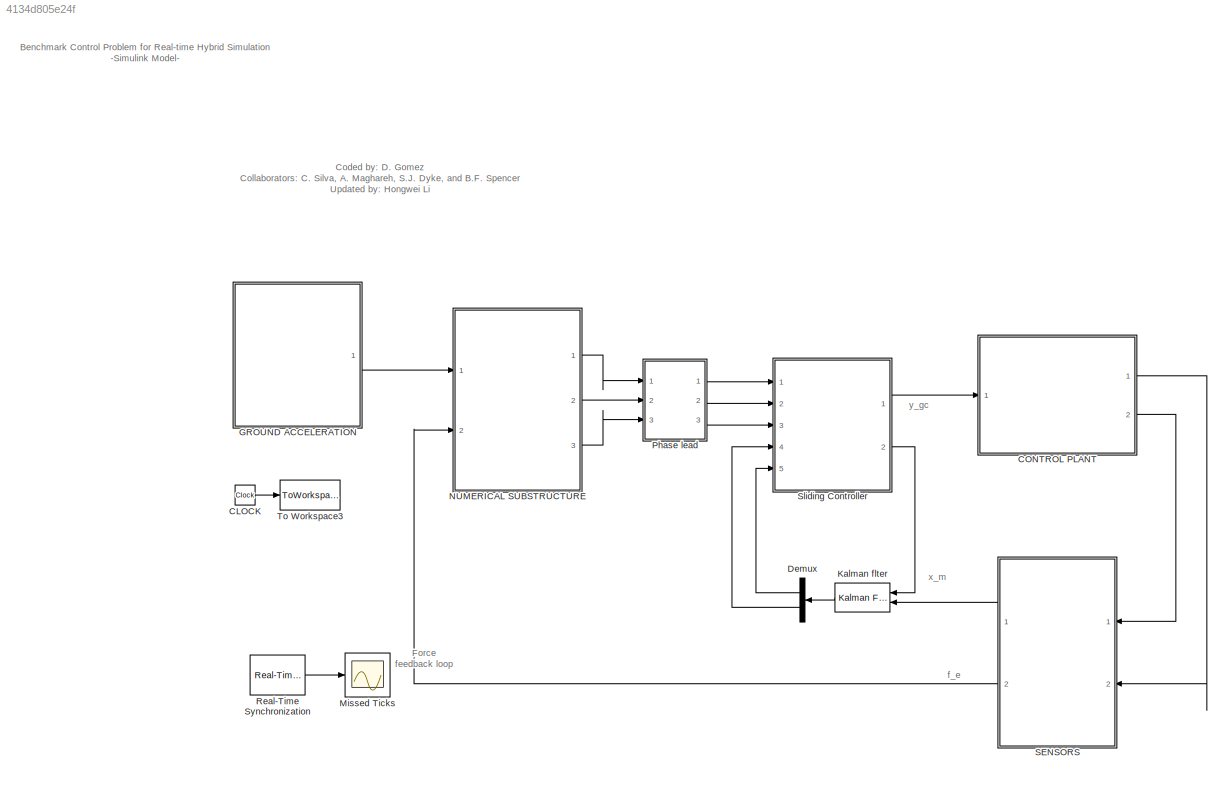
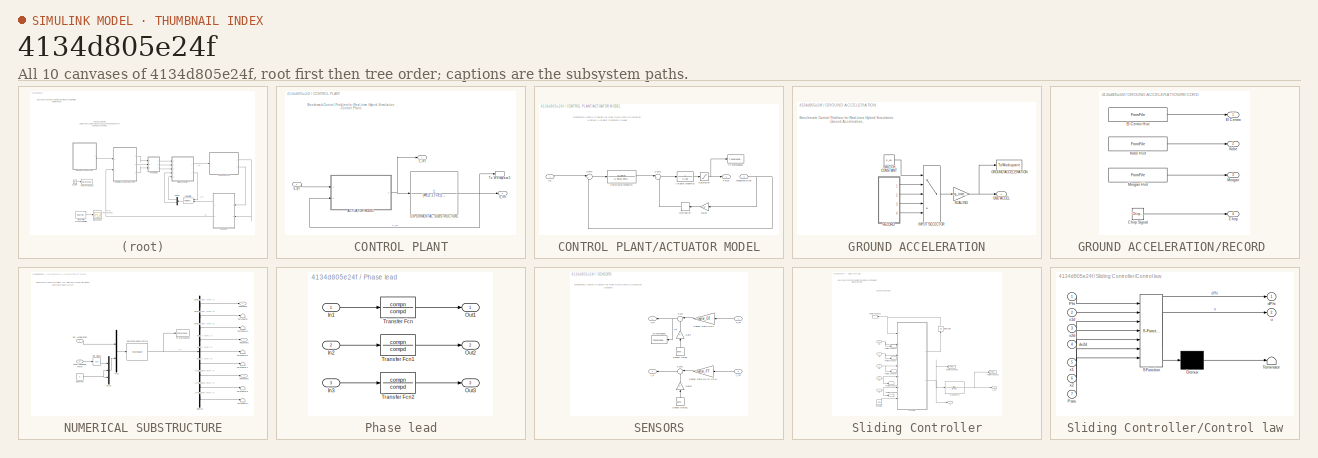
[diagram: thumbnail index - all 10 canvases of the model, root first then tree order]
MODEL slx_4134d805e24f
KIND model
CONFIG AbsTol = auto
CONFIG EnableMultiTasking = on
CONFIG FixedStep = dt_rths
CONFIG MaxStep = auto
CONFIG MinStep = auto
CONFIG RelTol = 1e-3
CONFIG SampleTimeConstraint = Unconstrained
CONFIG Solver = ode4
CONFIG SolverName = ode4
CONFIG StartTime = 0.0
CONFIG StopTime = tend
BLOCK [Clock] CLOCK
  Decimation = 1
BLOCK [SubSystem] CONTROL PLANT
  Ports = [1, 2]
  RequestExecContextInheritance = off
BLOCK [SubSystem] CONTROL PLANT/ACTUATOR MODEL
  Ports = [2, 1]
  RequestExecContextInheritance = off
BLOCK [TransferFcn] CONTROL PLANT/ACTUATOR MODEL/Actuator dynamics
  Denominator = [1 a3]
  Numerator = 1
BLOCK [Derivative] CONTROL PLANT/ACTUATOR MODEL/Derivative
BLOCK [Outport] CONTROL PLANT/ACTUATOR MODEL/Force
  IconDisplay = Port number
BLOCK [Gain] CONTROL PLANT/ACTUATOR MODEL/Gain1
  Gain = a2
  Multiplication = Matrix(K*u)
  OutDataTypeStr = Inherit: Inherit via internal rule
  ParamDataTypeStr = Inherit: Inherit via internal rule
  SaturateOnIntegerOverflow = off
BLOCK [Inport] CONTROL PLANT/ACTUATOR MODEL/In1
  IconDisplay = Port number
BLOCK [Inport] CONTROL PLANT/ACTUATOR MODEL/Measured Disp
  IconDisplay = Port number
  Port = 2
BLOCK [Saturate] CONTROL PLANT/ACTUATOR MODEL/Saturation
  InputPortMap = u0
  LowerLimit = -8900
  Ports = [1, 1]
  UpperLimit = 8900
BLOCK [TransferFcn] CONTROL PLANT/ACTUATOR MODEL/Servo-valve dynamics
  Denominator = [1 beta1 beta2]
  Numerator = a1_beta0
BLOCK [Sum] CONTROL PLANT/ACTUATOR MODEL/Sum2
  IconShape = round
  InputSameDT = off
  Inputs = |+-
  OutDataTypeStr = Inherit: Inherit via internal rule
  Ports = [2, 1]
  SaturateOnIntegerOverflow = off
BLOCK [Sum] CONTROL PLANT/ACTUATOR MODEL/Sum3
  IconShape = round
  InputSameDT = off
  Inputs = |+-
  OutDataTypeStr = Inherit: Inherit via internal rule
  Ports = [2, 1]
  SaturateOnIntegerOverflow = off
BLOCK [ToWorkspace] CONTROL PLANT/ACTUATOR MODEL/To Workspace1
  FixptAsFi = on
  MaxDataPoints = inf
  Ports = [1]
  SampleTime = -1
  VariableName = Force_act
BLOCK [TransferFcn] CONTROL PLANT/EXPERIMENTAL SUBSTRUCTURE
  Denominator = [ME(1,1) CE(1,1) KE(1,1)]
  Numerator = 1
BLOCK [ToWorkspace] CONTROL PLANT/To Workspace5
  FixptAsFi = on
  MaxDataPoints = inf
  Ports = [1]
  SampleTime = -1
  VariableName = x_int
BLOCK [Outport] CONTROL PLANT/f_int
  IconDisplay = Port number
BLOCK [Outport] CONTROL PLANT/x_int
  IconDisplay = Port number
  Port = 2
BLOCK [Inport] CONTROL PLANT/y_gc
  IconDisplay = Port number
BLOCK [Demux] Demux
  DisplayOption = bar
  Outputs = 2
  Ports = [1, 2]
BLOCK [SubSystem] GROUND ACCELERATION
  Ports = [0, 1]
  RequestExecContextInheritance = off
BLOCK [Outport] GROUND ACCELERATION/GND ACCEL
  IconDisplay = Port number
BLOCK [ToWorkspace] GROUND ACCELERATION/GROUND ACCELERATION
  MaxDataPoints = inf
  Ports = [1]
  SampleTime = -1
  VariableName = EQ_input
BLOCK [MultiPortSwitch] GROUND ACCELERATION/INPUT SELECTOR
  InputSameDT = off
  Inputs = 4
  Ports = [5, 1]
  SaturateOnIntegerOverflow = off
BLOCK [SubSystem] GROUND ACCELERATION/RECORD 
  Ports = [0, 4]
  RequestExecContextInheritance = off
BLOCK [Outport] GROUND ACCELERATION/RECORD /Chirp
  IconDisplay = Port number
  Port = 4
BLOCK [Reference] GROUND ACCELERATION/RECORD /Chirp Signal  REF=simulink/Sources/Chirp Signal
  Ports = [0, 1]
  SourceBlock = simulink/Sources/Chirp Signal
  SourceProductBaseCode = SL
  SourceProductName = Simulink
  SourceType = chirp
BLOCK [Outport] GROUND ACCELERATION/RECORD /El Centro
  IconDisplay = Port number
BLOCK [FromFile] GROUND ACCELERATION/RECORD /El Centro Hist
  FileName = ElCentroAccelNoScaling.mat
BLOCK [Outport] GROUND ACCELERATION/RECORD /Kobe
  IconDisplay = Port number
  Port = 2
BLOCK [FromFile] GROUND ACCELERATION/RECORD /Kobe Hist
  FileName = KobeAccelNoScaling.mat
BLOCK [Outport] GROUND ACCELERATION/RECORD /Morgan
  IconDisplay = Port number
  Port = 3
BLOCK [FromFile] GROUND ACCELERATION/RECORD /Morgan Hist
  FileName = MorganAccelNoScaling.mat
BLOCK [Gain] GROUND ACCELERATION/SCALING
  Gain = eq_intensity
  Multiplication = Matrix(K*u)
  OutDataTypeStr = Inherit: Inherit via internal rule
  ParamDataTypeStr = Inherit: Inherit via internal rule
  SaturateOnIntegerOverflow = off
BLOCK [Constant] GROUND ACCELERATION/SWITCH CONSTANT
  Value = E_sw
BLOCK [Reference] Kalman flter  REF=ctrlSharedLib/Kalman Filter
  Ports = [2, 1]
  SourceBlock = ctrlSharedLib/Kalman Filter
  SourceProductBaseCode = CT
  SourceProductName = Control System Toolbox
  SourceType = ctrlKalmanFilter
BLOCK [Scope] Missed Ticks
  Commented = on
  Floating = off
  NumInputPorts = 1
  Ports = [1]
  ScopeSpecificationString = Simulink.scopes.TimeScopeBlockCfg('CurrentConfiguration', extmgr.ConfigurationSet(extmgr.Configuration('Core','General UI',true,'FigureColor',[0.156862745098039 0.156862745098039 0.156862745098039]),extmgr.Configuration('Core','Source UI',true),extmgr.Configuration('Sources','WiredSimulink',true,'DataLoggingVariableName','ScopeData1','DataLoggingSaveFormat','Structure','DataLoggingDecimation','1',...<+2769ch>
BLOCK [SubSystem] NUMERICAL SUBSTRUCTURE
  Ports = [2, 3]
  RequestExecContextInheritance = off
BLOCK [Constant] NUMERICAL SUBSTRUCTURE/Constant
  Value = 0
BLOCK [Demux] NUMERICAL SUBSTRUCTURE/Demux
  DisplayOption = bar
  Outputs = 9
  Ports = [1, 9]
BLOCK [Inport] NUMERICAL SUBSTRUCTURE/EQ Acceleration
  IconDisplay = Port number
BLOCK [Mux] NUMERICAL SUBSTRUCTURE/Mux
  DisplayOption = bar
  Inputs = 2
  Ports = [2, 1]
BLOCK [Mux] NUMERICAL SUBSTRUCTURE/Mux1
  DisplayOption = bar
  Inputs = 3
  Ports = [3, 1]
BLOCK [StateSpace] NUMERICAL SUBSTRUCTURE/Numerical Substructure
  A = A_ns
  B = B_ns
  C = C_ns
  D = D_ns
  InitialCondition = 0
  Ports = [1, 1]
BLOCK [Inport] NUMERICAL SUBSTRUCTURE/RTHS feedback Force
  IconDisplay = Port number
  Port = 2
BLOCK [Outport] NUMERICAL SUBSTRUCTURE/Response
  IconDisplay = Port number
BLOCK [Outport] NUMERICAL SUBSTRUCTURE/Response1
  IconDisplay = Port number
  Port = 2
BLOCK [Outport] NUMERICAL SUBSTRUCTURE/Response2
  IconDisplay = Port number
  Port = 3
BLOCK [Terminator] NUMERICAL SUBSTRUCTURE/Terminator
BLOCK [Terminator] NUMERICAL SUBSTRUCTURE/Terminator1
BLOCK [Terminator] NUMERICAL SUBSTRUCTURE/Terminator3
BLOCK [Terminator] NUMERICAL SUBSTRUCTURE/Terminator4
BLOCK [Terminator] NUMERICAL SUBSTRUCTURE/Terminator6
BLOCK [Terminator] NUMERICAL SUBSTRUCTURE/Terminator7
BLOCK [ToWorkspace] NUMERICAL SUBSTRUCTURE/To Workspace1
  FixptAsFi = on
  MaxDataPoints = inf
  Ports = [1]
  SampleTime = -1
  SaveFormat = Timeseries
  VariableName = Num_resp
BLOCK [UnitDelay] NUMERICAL SUBSTRUCTURE/Unit Delay1
  HasFrameUpgradeWarning = on
  SampleTime = -1
BLOCK [SubSystem] Phase lead
  Ports = [3, 3]
  RequestExecContextInheritance = off
BLOCK [Inport] Phase lead/In1
  IconDisplay = Port number
BLOCK [Inport] Phase lead/In2
  IconDisplay = Port number
  Port = 2
BLOCK [Inport] Phase lead/In3
  IconDisplay = Port number
  Port = 3
BLOCK [Outport] Phase lead/Out1
  IconDisplay = Port number
BLOCK [Outport] Phase lead/Out2
  IconDisplay = Port number
  Port = 2
BLOCK [Outport] Phase lead/Out3
  IconDisplay = Port number
  Port = 3
BLOCK [TransferFcn] Phase lead/Transfer Fcn
  Denominator = compd
  Numerator = compn
BLOCK [TransferFcn] Phase lead/Transfer Fcn1
  Denominator = compd
  Numerator = compn
BLOCK [TransferFcn] Phase lead/Transfer Fcn2
  Denominator = compd
  Numerator = compn
BLOCK [Reference] Real-Time Synchronization  REF=sldrtlib/Real-Time
Synchronization
  Commented = on
  Ports = [0, 1]
  SourceBlock = sldrtlib/Real-Time\nSynchronization
  SourceProductBaseCode = WT
  SourceProductName = Simulink Desktop Real-Time
  SourceType = Simulink Desktop Real-Time Synchronization
BLOCK [SubSystem] SENSORS
  Ports = [2, 2]
  RequestExecContextInheritance = off
BLOCK [Gain] SENSORS/Gain
  OutDataTypeStr = Inherit: Inherit via internal rule
  ParamDataTypeStr = Inherit: Inherit via internal rule
  SaturateOnIntegerOverflow = off
BLOCK [Gain] SENSORS/Gain1
  OutDataTypeStr = Inherit: Inherit via internal rule
  ParamDataTypeStr = Inherit: Inherit via internal rule
  SaturateOnIntegerOverflow = off
BLOCK [Gain] SENSORS/Sensor Gain LOAD CELL
  Gain = Gsnsr_FT
BLOCK [Gain] SENSORS/Sensor Gain LVDT
  Gain = Gsnsr_DT
BLOCK [Reference] SENSORS/Sensor Noise  REF=simulink/Sources/Band-Limited
White Noise
  Ports = [0, 1]
  SourceBlock = simulink/Sources/Band-Limited\nWhite Noise
  SourceProductBaseCode = SL
  SourceProductName = Simulink
  SourceType = Band-Limited White Noise.
BLOCK [Reference] SENSORS/Sensor Noise1  REF=simulink/Sources/Band-Limited
White Noise
  Ports = [0, 1]
  SourceBlock = simulink/Sources/Band-Limited\nWhite Noise
  SourceProductBaseCode = SL
  SourceProductName = Simulink
  SourceType = Band-Limited White Noise.
BLOCK [Sum] SENSORS/Sum
  IconShape = round
  Inputs = |++
  Ports = [2, 1]
BLOCK [Sum] SENSORS/Sum1
  IconShape = round
  Inputs = |++
  Ports = [2, 1]
BLOCK [ToWorkspace] SENSORS/To Workspace
  FixptAsFi = on
  MaxDataPoints = inf
  Ports = [1]
  SampleTime = -1
  SaveFormat = Timeseries
  VariableName = X_m
BLOCK [Outport] SENSORS/f_e 
  IconDisplay = Port number
  Port = 2
BLOCK [Inport] SENSORS/f_int
  IconDisplay = Port number
  Port = 2
BLOCK [Inport] SENSORS/x_int
  IconDisplay = Port number
BLOCK [Outport] SENSORS/x_m
  IconDisplay = Port number
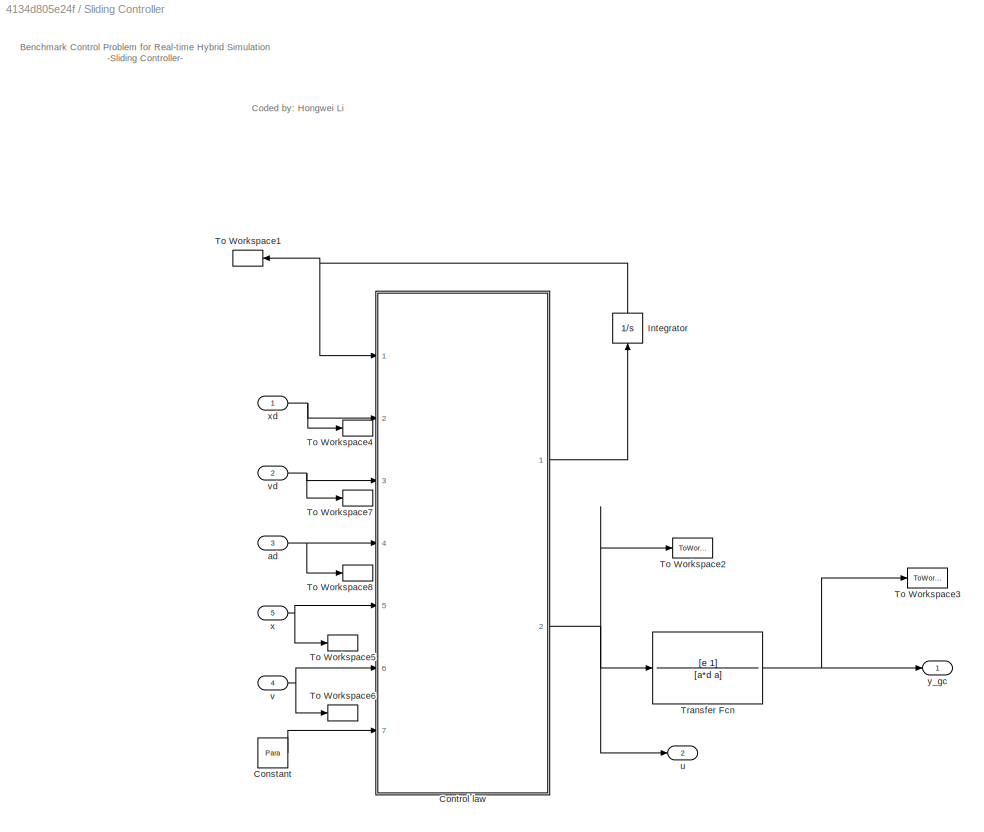
BLOCK [SubSystem] Sliding Controller
  Ports = [5, 2]
  RequestExecContextInheritance = off
BLOCK [Constant] Sliding Controller/Constant
  Value = Para
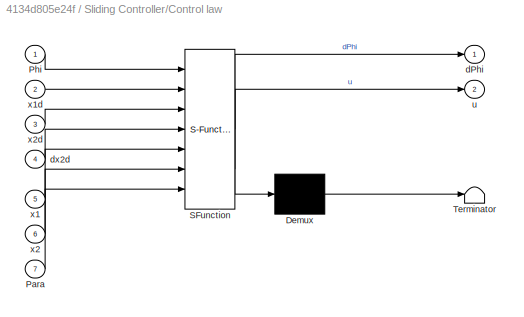
BLOCK [SubSystem] Sliding Controller/Control law
  ErrorFcn = Stateflow.Translate.translate
  PermitHierarchicalResolution = ExplicitOnly
  Ports = [7, 2]
  RequestExecContextInheritance = off
  SFBlockType = MATLAB Function
  TreatAsAtomicUnit = on
BLOCK [Demux] Sliding Controller/Control law/ Demux 
  Outputs = 1
  Ports = [1, 1]
BLOCK [S-Function] Sliding Controller/Control law/ SFunction 
  EnableBusSupport = on
  FunctionName = sf_sfun
  PortCounts = [7 3]
  Ports = [7, 3]
  SFcnIsStateOwnerBlock = off
  SFunctionDeploymentMode = off
  Tag = Stateflow S-Function vRTHS_MDOF_SimRT 4
BLOCK [Terminator] Sliding Controller/Control law/ Terminator 
BLOCK [Inport] Sliding Controller/Control law/Para
  IconDisplay = Port number
  Port = 7
BLOCK [Inport] Sliding Controller/Control law/Phi
  IconDisplay = Port number
BLOCK [Outport] Sliding Controller/Control law/dPhi
  IconDisplay = Port number
BLOCK [Inport] Sliding Controller/Control law/dx2d
  IconDisplay = Port number
  Port = 4
BLOCK [Outport] Sliding Controller/Control law/u
  IconDisplay = Port number
  Port = 2
BLOCK [Inport] Sliding Controller/Control law/x1
  IconDisplay = Port number
  Port = 5
BLOCK [Inport] Sliding Controller/Control law/x1d
  IconDisplay = Port number
  Port = 2
BLOCK [Inport] Sliding Controller/Control law/x2
  IconDisplay = Port number
  Port = 6
BLOCK [Inport] Sliding Controller/Control law/x2d
  IconDisplay = Port number
  Port = 3
BLOCK [Integrator] Sliding Controller/Integrator
  Ports = [1, 1]
BLOCK [ToWorkspace] Sliding Controller/To Workspace1
  FixptAsFi = on
  MaxDataPoints = inf
  Ports = [1]
  SampleTime = -1
  VariableName = Phi
BLOCK [ToWorkspace] Sliding Controller/To Workspace2
  FixptAsFi = on
  MaxDataPoints = inf
  Ports = [1]
  SampleTime = -1
  VariableName = u
BLOCK [ToWorkspace] Sliding Controller/To Workspace3
  FixptAsFi = on
  MaxDataPoints = inf
  Ports = [1]
  SampleTime = -1
  VariableName = y_gc
BLOCK [ToWorkspace] Sliding Controller/To Workspace4
  FixptAsFi = on
  MaxDataPoints = inf
  Ports = [1]
  SampleTime = -1
  VariableName = xd
BLOCK [ToWorkspace] Sliding Controller/To Workspace5
  FixptAsFi = on
  MaxDataPoints = inf
  Ports = [1]
  SampleTime = -1
  VariableName = x
BLOCK [ToWorkspace] Sliding Controller/To Workspace6
  FixptAsFi = on
  MaxDataPoints = inf
  Ports = [1]
  SampleTime = -1
  VariableName = v
BLOCK [ToWorkspace] Sliding Controller/To Workspace7
  FixptAsFi = on
  MaxDataPoints = inf
  Ports = [1]
  SampleTime = -1
  VariableName = vd
BLOCK [ToWorkspace] Sliding Controller/To Workspace8
  FixptAsFi = on
  MaxDataPoints = inf
  Ports = [1]
  SampleTime = -1
  VariableName = ad
BLOCK [TransferFcn] Sliding Controller/Transfer Fcn
  Denominator = [a*d a]
  Numerator = [e 1]
BLOCK [Inport] Sliding Controller/ad
  IconDisplay = Port number
  Port = 3
BLOCK [Outport] Sliding Controller/u
  IconDisplay = Port number
  Port = 2
BLOCK [Inport] Sliding Controller/v
  IconDisplay = Port number
  Port = 4
BLOCK [Inport] Sliding Controller/vd
  IconDisplay = Port number
  Port = 2
BLOCK [Inport] Sliding Controller/x
  IconDisplay = Port number
  Port = 5
BLOCK [Inport] Sliding Controller/xd
  IconDisplay = Port number
BLOCK [Outport] Sliding Controller/y_gc
  IconDisplay = Port number
BLOCK [ToWorkspace] To Workspace3
  MaxDataPoints = inf
  Ports = [1]
  SampleTime = -1
  VariableName = t
ANNOTATION (root): Coded by: D. Gomez Collaborators: C. Silva, A. Maghareh, S.J. Dyke, and B.F. Spencer Updated by: Hongwei Li
ANNOTATION (root): Benchmark Control Problem for Real-time Hybrid Simulation -Simulink Model-
ANNOTATION (root): f_e
ANNOTATION (root): x_m
ANNOTATION (root): y_gc
ANNOTATION (root): Force feedback loop
ANNOTATION CONTROL PLANT: Benchmark Control Problem for Real-time Hybrid Simulation -Control Plant-
ANNOTATION CONTROL PLANT/ACTUATOR MODEL: Benchmark Control Problem for Real-time Hybrid Simulation Hydraulic Actuator Parametric Model
ANNOTATION GROUND ACCELERATION: Benchmark Control Problem for Real-time Hybrid Simulation -Ground Acceleration-
ANNOTATION NUMERICAL SUBSTRUCTURE: Benchmark Control Problem for Real-time Hybrid Simulation -Numerical Substructure-
ANNOTATION NUMERICAL SUBSTRUCTURE: y_n
ANNOTATION NUMERICAL SUBSTRUCTURE: Acceleration (story 2)
ANNOTATION NUMERICAL SUBSTRUCTURE: Acceleration (story 1)
ANNOTATION NUMERICAL SUBSTRUCTURE: Acceleration (story 3)
ANNOTATION NUMERICAL SUBSTRUCTURE: Displacement (story 1)
ANNOTATION NUMERICAL SUBSTRUCTURE: Displacement (story 2)
ANNOTATION NUMERICAL SUBSTRUCTURE: Displacement (story 3)
ANNOTATION NUMERICAL SUBSTRUCTURE: Velocity (story 1)
ANNOTATION NUMERICAL SUBSTRUCTURE: Velocity (story 2)
ANNOTATION NUMERICAL SUBSTRUCTURE: Velocity (story 3)
ANNOTATION SENSORS: Benchmark Control Problem for Real-time Hybrid Simulation -Sensors-
ANNOTATION Sliding Controller: Coded by: Hongwei Li
ANNOTATION Sliding Controller: Benchmark Control Problem for Real-time Hybrid Simulation -Sliding Controller-
LINE CLOCK:1 -> To Workspace3:1
LINE CONTROL PLANT/ACTUATOR MODEL/Actuator dynamics:1 -> CONTROL PLANT/ACTUATOR MODEL/Saturation:1
LINE CONTROL PLANT/ACTUATOR MODEL/Derivative:1 -> CONTROL PLANT/ACTUATOR MODEL/Sum3:2
LINE CONTROL PLANT/ACTUATOR MODEL/Gain1:1 -> CONTROL PLANT/ACTUATOR MODEL/Derivative:1
LINE CONTROL PLANT/ACTUATOR MODEL/In1:1 -> CONTROL PLANT/ACTUATOR MODEL/Sum2:1
NET CONTROL PLANT/ACTUATOR MODEL/Measured Disp:1 -> CONTROL PLANT/ACTUATOR MODEL/Gain1:1, CONTROL PLANT/ACTUATOR MODEL/Sum2:2
NET CONTROL PLANT/ACTUATOR MODEL/Saturation:1 -> CONTROL PLANT/ACTUATOR MODEL/Force:1, CONTROL PLANT/ACTUATOR MODEL/To Workspace1:1
LINE CONTROL PLANT/ACTUATOR MODEL/Servo-valve dynamics:1 -> CONTROL PLANT/ACTUATOR MODEL/Sum3:1
LINE CONTROL PLANT/ACTUATOR MODEL/Sum2:1 -> CONTROL PLANT/ACTUATOR MODEL/Servo-valve dynamics:1
LINE CONTROL PLANT/ACTUATOR MODEL/Sum3:1 -> CONTROL PLANT/ACTUATOR MODEL/Actuator dynamics:1
NET CONTROL PLANT/ACTUATOR MODEL:1 -> CONTROL PLANT/EXPERIMENTAL SUBSTRUCTURE:1, CONTROL PLANT/f_int:1
NET CONTROL PLANT/EXPERIMENTAL SUBSTRUCTURE:1 -> CONTROL PLANT/ACTUATOR MODEL:2, CONTROL PLANT/To Workspace5:1, CONTROL PLANT/x_int:1
LINE CONTROL PLANT/y_gc:1 -> CONTROL PLANT/ACTUATOR MODEL:1
LINE CONTROL PLANT:1 -> SENSORS:2
LINE CONTROL PLANT:2 -> SENSORS:1
LINE Demux:1 -> Sliding Controller:5
LINE Demux:2 -> Sliding Controller:4
LINE GROUND ACCELERATION/INPUT SELECTOR:1 -> GROUND ACCELERATION/SCALING:1
LINE GROUND ACCELERATION/RECORD /Chirp Signal:1 -> GROUND ACCELERATION/RECORD /Chirp:1
LINE GROUND ACCELERATION/RECORD /El Centro Hist:1 -> GROUND ACCELERATION/RECORD /El Centro:1
LINE GROUND ACCELERATION/RECORD /Kobe Hist:1 -> GROUND ACCELERATION/RECORD /Kobe:1
LINE GROUND ACCELERATION/RECORD /Morgan Hist:1 -> GROUND ACCELERATION/RECORD /Morgan:1
LINE GROUND ACCELERATION/RECORD :1 -> GROUND ACCELERATION/INPUT SELECTOR:2
LINE GROUND ACCELERATION/RECORD :2 -> GROUND ACCELERATION/INPUT SELECTOR:3
LINE GROUND ACCELERATION/RECORD :3 -> GROUND ACCELERATION/INPUT SELECTOR:4
LINE GROUND ACCELERATION/RECORD :4 -> GROUND ACCELERATION/INPUT SELECTOR:5
NET GROUND ACCELERATION/SCALING:1 -> GROUND ACCELERATION/GND ACCEL:1, GROUND ACCELERATION/GROUND ACCELERATION:1
LINE GROUND ACCELERATION/SWITCH CONSTANT:1 -> GROUND ACCELERATION/INPUT SELECTOR:1
LINE GROUND ACCELERATION:1 -> NUMERICAL SUBSTRUCTURE:1
LINE Kalman flter:1 -> Demux:1
NET NUMERICAL SUBSTRUCTURE/Constant:1 -> NUMERICAL SUBSTRUCTURE/Mux1:2, NUMERICAL SUBSTRUCTURE/Mux1:3
LINE NUMERICAL SUBSTRUCTURE/Demux:1 -> NUMERICAL SUBSTRUCTURE/Response:1
LINE NUMERICAL SUBSTRUCTURE/Demux:2 -> NUMERICAL SUBSTRUCTURE/Terminator:1
LINE NUMERICAL SUBSTRUCTURE/Demux:3 -> NUMERICAL SUBSTRUCTURE/Terminator1:1
LINE NUMERICAL SUBSTRUCTURE/Demux:4 -> NUMERICAL SUBSTRUCTURE/Response1:1
LINE NUMERICAL SUBSTRUCTURE/Demux:5 -> NUMERICAL SUBSTRUCTURE/Terminator3:1
LINE NUMERICAL SUBSTRUCTURE/Demux:6 -> NUMERICAL SUBSTRUCTURE/Terminator4:1
LINE NUMERICAL SUBSTRUCTURE/Demux:7 -> NUMERICAL SUBSTRUCTURE/Response2:1
LINE NUMERICAL SUBSTRUCTURE/Demux:8 -> NUMERICAL SUBSTRUCTURE/Terminator6:1
LINE NUMERICAL SUBSTRUCTURE/Demux:9 -> NUMERICAL SUBSTRUCTURE/Terminator7:1
LINE NUMERICAL SUBSTRUCTURE/EQ Acceleration:1 -> NUMERICAL SUBSTRUCTURE/Mux:1
LINE NUMERICAL SUBSTRUCTURE/Mux1:1 -> NUMERICAL SUBSTRUCTURE/Mux:2
LINE NUMERICAL SUBSTRUCTURE/Mux:1 -> NUMERICAL SUBSTRUCTURE/Numerical Substructure:1
NET NUMERICAL SUBSTRUCTURE/Numerical Substructure:1 -> NUMERICAL SUBSTRUCTURE/Demux:1, NUMERICAL SUBSTRUCTURE/To Workspace1:1
LINE NUMERICAL SUBSTRUCTURE/RTHS feedback Force:1 -> NUMERICAL SUBSTRUCTURE/Unit Delay1:1
LINE NUMERICAL SUBSTRUCTURE/Unit Delay1:1 -> NUMERICAL SUBSTRUCTURE/Mux1:1
LINE NUMERICAL SUBSTRUCTURE:1 -> Phase lead:1
LINE NUMERICAL SUBSTRUCTURE:2 -> Phase lead:2
LINE NUMERICAL SUBSTRUCTURE:3 -> Phase lead:3
LINE Phase lead/In1:1 -> Phase lead/Transfer Fcn:1
LINE Phase lead/In2:1 -> Phase lead/Transfer Fcn1:1
LINE Phase lead/In3:1 -> Phase lead/Transfer Fcn2:1
LINE Phase lead/Transfer Fcn1:1 -> Phase lead/Out2:1
LINE Phase lead/Transfer Fcn2:1 -> Phase lead/Out3:1
LINE Phase lead/Transfer Fcn:1 -> Phase lead/Out1:1
LINE Phase lead:1 -> Sliding Controller:1
LINE Phase lead:2 -> Sliding Controller:2
LINE Phase lead:3 -> Sliding Controller:3
LINE Real-Time Synchronization:1 -> Missed Ticks:1
LINE SENSORS/Gain1:1 -> SENSORS/Sum1:2
LINE SENSORS/Gain:1 -> SENSORS/Sum:2
LINE SENSORS/Sensor Gain LOAD CELL:1 -> SENSORS/Sum1:1
LINE SENSORS/Sensor Gain LVDT:1 -> SENSORS/Sum:1
LINE SENSORS/Sensor Noise1:1 -> SENSORS/Gain1:1
LINE SENSORS/Sensor Noise:1 -> SENSORS/Gain:1
LINE SENSORS/Sum1:1 -> SENSORS/f_e :1
NET SENSORS/Sum:1 -> SENSORS/To Workspace:1, SENSORS/x_m:1
LINE SENSORS/f_int:1 -> SENSORS/Sensor Gain LOAD CELL:1
LINE SENSORS/x_int:1 -> SENSORS/Sensor Gain LVDT:1
LINE SENSORS:1 -> Kalman flter:2
LINE SENSORS:2 -> NUMERICAL SUBSTRUCTURE:2
LINE Sliding Controller/Constant:1 -> Sliding Controller/Control law:7
LINE Sliding Controller/Control law:1 -> Sliding Controller/Integrator:1
NET Sliding Controller/Control law:2 -> Sliding Controller/To Workspace2:1, Sliding Controller/Transfer Fcn:1, Sliding Controller/u:1
NET Sliding Controller/Integrator:1 -> Sliding Controller/Control law:1, Sliding Controller/To Workspace1:1
NET Sliding Controller/Transfer Fcn:1 -> Sliding Controller/To Workspace3:1, Sliding Controller/y_gc:1
NET Sliding Controller/ad:1 -> Sliding Controller/Control law:4, Sliding Controller/To Workspace8:1
NET Sliding Controller/v:1 -> Sliding Controller/Control law:6, Sliding Controller/To Workspace6:1
NET Sliding Controller/vd:1 -> Sliding Controller/Control law:3, Sliding Controller/To Workspace7:1
NET Sliding Controller/x:1 -> Sliding Controller/Control law:5, Sliding Controller/To Workspace5:1
NET Sliding Controller/xd:1 -> Sliding Controller/Control law:2, Sliding Controller/To Workspace4:1
LINE Sliding Controller:1 -> CONTROL PLANT:1
LINE Sliding Controller:2 -> Kalman flter:1
note: NET lines group one-source signal fan-out (src -> all destinations, sorted); 1:1 wires keep LINE
CHART Sliding Controller/Control law states=1 transitions=1
  STATE_LABEL 'eML_blk_kernel()'
  STATE_LABEL 'SCRIPT:\nfunction [dPhi,u]  = Controller(Phi,x1d,x2d,dx2d,x1,x2,Para)\nbbar=Para(1); cbar=Para(2);\nbM=Para(3); cM=Para(4);\nlambda=Para(5); eta=Para(6);\nsw=Para(7);\n\nfbar=-bbar*x2-cbar*x1;\nubar=-fbar+dx2d-lambda*(x2-x2d);\nF=bM*abs(x2)+cM*abs(x1);\nk=F+eta;\nFd=bM*abs(x2d)+cM*abs(x1d);\ndPhi=Fd+eta-lambda*Phi;\nkbar=k-dPhi;\nE=x2-x2d+lambda*(x1-x1d);\nif sw==1\n    if abs(E)>=Phi\n        sat=sign(E);\n    els...<+95ch>'
